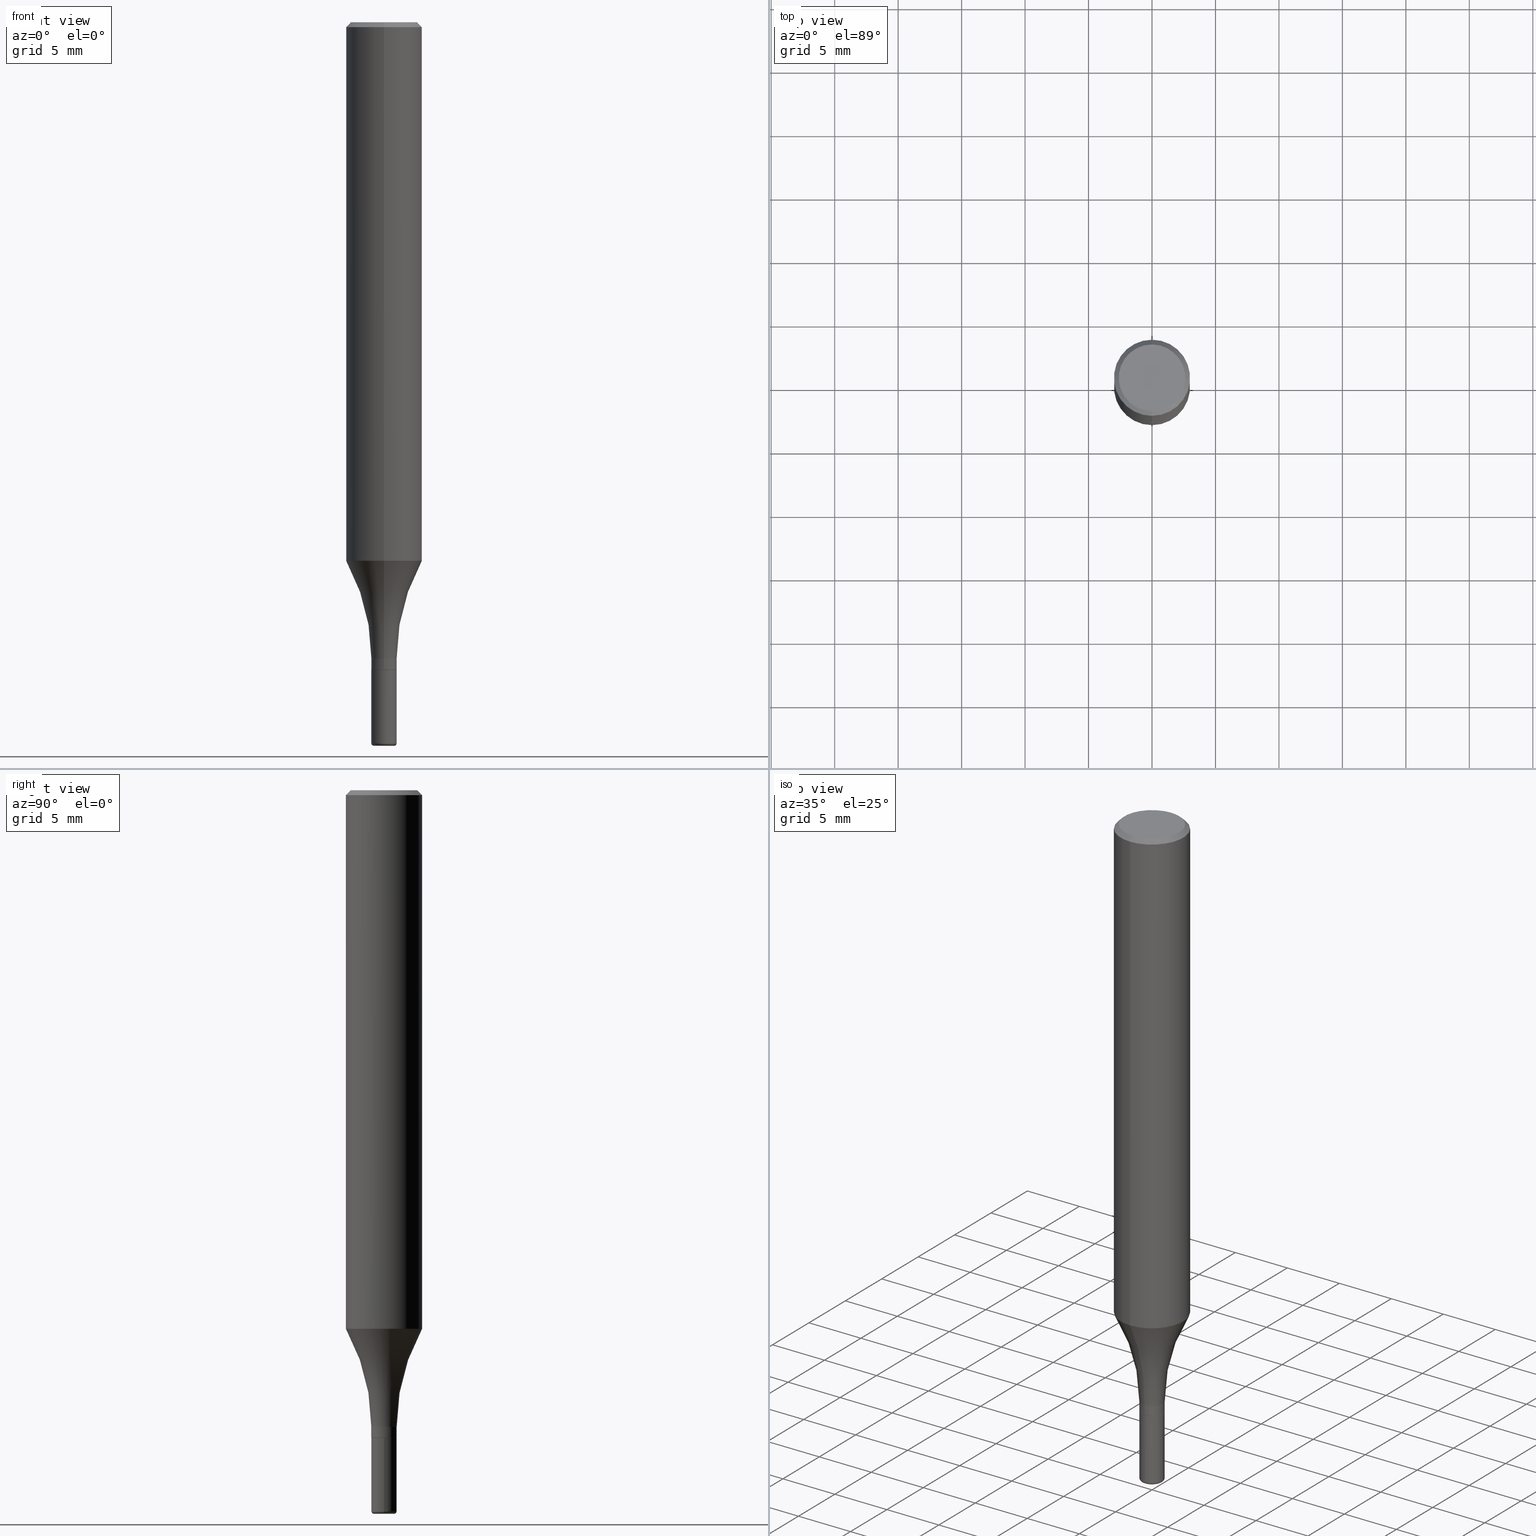
[diagram: canonical four-view strip — front | top / right | iso, engineering-drawing reading convention]
A machine part, canonical four-view strip (front | top / right | iso — engineering-drawing reading convention). The complete STEP part file that produces these views, byte-faithful:
ISO-10303-21;
HEADER;
FILE_DESCRIPTION (( 'STEP AP203' ),
    '1' );
FILE_NAME ('46850.STEP',
    '2024-02-29T19:33:15',
    ( '' ),
    ( '' ),
    'SwSTEP 2.0',
    'SolidWorks 2023',
    '' );
FILE_SCHEMA (( 'CONFIG_CONTROL_DESIGN' ));
ENDSEC;

DATA;
#1 = DIRECTION ( 'NONE',  ( 6.982962677686265922E-15, 1.000000000000000000, -3.487819265831411744E-15 ) ) ;
#2 = DIRECTION ( 'NONE',  ( -1.000000000000000000, 6.982962677686265922E-15, -4.876176775795935793E-29 ) ) ;
#3 = VECTOR ( 'NONE', #500, 39.37007874015748143 ) ;
#4 = CARTESIAN_POINT ( 'NONE',  ( -6.680938517608217067E-45, 9.541184901237628866E-31, 2.732334606503583506E-16 ) ) ;
#5 = AXIS2_PLACEMENT_3D ( 'NONE', #99, #492, #326 ) ;
#6 = CIRCLE ( 'NONE', #393, 0.03135000000000000286 ) ;
#7 = FACE_OUTER_BOUND ( 'NONE', #47, .T. ) ;
#8 = DIRECTION ( 'NONE',  ( 5.024295867785874878E-15, 0.7071067811862421504, 0.7071067811868528841 ) ) ;
#9 = TOROIDAL_SURFACE ( 'NONE', #100, 0.03135000000000000286, 0.008000000000000147618 ) ;
#10 = DIRECTION ( 'NONE',  ( 1.000000000000000000, -6.982962677686269077E-15, 0.000000000000000000 ) ) ;
#11 = ORIENTED_EDGE ( 'NONE', *, *, #39, .T. ) ;
#12 = DIRECTION ( 'NONE',  ( -2.445139223324277623E-29, 3.491953320258587093E-15, 1.000000000000000000 ) ) ;
#13 = ADVANCED_FACE ( 'NONE', ( #442 ), #278, .F. ) ;
#14 = CARTESIAN_POINT ( 'NONE',  ( 4.909595046512817107E-29, -7.011493071747216569E-15, -2.007899999999999796 ) ) ;
#15 = LINE ( 'NONE', #173, #375 ) ;
#16 = APPROVAL_PERSON_ORGANIZATION ( #193, #30, #151 ) ;
#17 = CARTESIAN_POINT ( 'NONE',  ( 3.667708834986338837E-31, -5.237929980387770643E-17, -0.01499999999999968373 ) ) ;
#18 = CARTESIAN_POINT ( 'NONE',  ( -8.246878922347480654E-16, -0.1181000000000000105, 4.123996871225391415E-16 ) ) ;
#19 = EDGE_CURVE ( 'NONE', #419, #452, #123, .T. ) ;
#20 = CARTESIAN_POINT ( 'NONE',  ( 4.827599970290078633E-29, -6.892533311010254125E-15, -1.974100000000000188 ) ) ;
#21 = FACE_OUTER_BOUND ( 'NONE', #511, .T. ) ;
#22 = AXIS2_PLACEMENT_3D ( 'NONE', #57, #358, #2 ) ;
#23 = AXIS2_PLACEMENT_3D ( 'NONE', #395, #41, #58 ) ;
#24 = PERSON_AND_ORGANIZATION_ROLE ( 'classification_officer' ) ;
#25 = EDGE_CURVE ( 'NONE', #306, #213, #230, .T. ) ;
#26 = CIRCLE ( 'NONE', #68, 0.03935000000000000303 ) ;
#27 = APPROVAL_STATUS ( 'not_yet_approved' ) ;
#28 = DATE_AND_TIME ( #382, #35 ) ;
#29 = AXIS2_PLACEMENT_3D ( 'NONE', #362, #12, #369 ) ;
#30 = APPROVAL ( #349, 'UNSPECIFIED' ) ;
#31 = DIRECTION ( 'NONE',  ( -6.982962677686265922E-15, -1.000000000000000000, 3.491953320258587093E-15 ) ) ;
#32 = DATE_TIME_ROLE ( 'classification_date' ) ;
#33 = DIRECTION ( 'NONE',  ( -2.445139223324277623E-29, 3.491953320258587093E-15, 1.000000000000000000 ) ) ;
#34 = VERTEX_POINT ( 'NONE', #485 ) ;
#35 = LOCAL_TIME ( 14, 33, 15.00000000000000000, #305 ) ;
#36 = ADVANCED_BREP_SHAPE_REPRESENTATION ( '46850', ( #417, #421, #113 ), #397 ) ;
#37 = DIRECTION ( 'NONE',  ( -1.000000000000000000, 6.982962677686265922E-15, -4.883557194083112340E-29 ) ) ;
#38 = DIRECTION ( 'NONE',  ( -6.982962677686265922E-15, -1.000000000000000000, 6.942434545525431313E-15 ) ) ;
#39 = EDGE_CURVE ( 'NONE', #48, #338, #242, .T. ) ;
#40 = DIRECTION ( 'NONE',  ( -2.445139223324277623E-29, 3.491953320258587093E-15, 1.000000000000000000 ) ) ;
#41 = DIRECTION ( 'NONE',  ( 2.445139223324277343E-29, -3.491953320258587093E-15, -1.000000000000000000 ) ) ;
#42 = ORIENTED_EDGE ( 'NONE', *, *, #152, .F. ) ;
#43 = AXIS2_PLACEMENT_3D ( 'NONE', #137, #259, #458 ) ;
#44 = PLANE ( 'NONE',  #352 ) ;
#45 = APPROVAL ( #27, 'UNSPECIFIED' ) ;
#46 = CARTESIAN_POINT ( 'NONE',  ( 0.000000000000000000, 0.000000000000000000, 0.000000000000000000 ) ) ;
#47 = EDGE_LOOP ( 'NONE', ( #400, #65, #130, #425 ) ) ;
#48 = VERTEX_POINT ( 'NONE', #359 ) ;
#49 = DIRECTION ( 'NONE',  ( -2.445139223324277623E-29, 3.491953320258587093E-15, 1.000000000000000000 ) ) ;
#50 = EDGE_LOOP ( 'NONE', ( #200, #399, #404, #345 ) ) ;
#51 = CIRCLE ( 'NONE', #118, 0.03935000000000007936 ) ;
#52 = DIRECTION ( 'NONE',  ( 1.000000000000000000, -6.982962677686269077E-15, 0.000000000000000000 ) ) ;
#53 = ORIENTED_EDGE ( 'NONE', *, *, #342, .F. ) ;
#54 = ORIENTED_EDGE ( 'NONE', *, *, #368, .T. ) ;
#55 = DIRECTION ( 'NONE',  ( -6.982962677686265922E-15, -1.000000000000000000, 3.491953320258587487E-15 ) ) ;
#56 = EDGE_CURVE ( 'NONE', #325, #112, #187, .T. ) ;
#57 = CARTESIAN_POINT ( 'NONE',  ( 2.747795813670036784E-16, 0.03934999999999299475, -2.007900000000000240 ) ) ;
#58 = DIRECTION ( 'NONE',  ( 6.982962677686265922E-15, 1.000000000000000000, -3.491953320258587093E-15 ) ) ;
#59 = AXIS2_PLACEMENT_3D ( 'NONE', #402, #134, #52 ) ;
#60 = ADVANCED_FACE ( 'NONE', ( #90 ), #44, .F. ) ;
#61 = FACE_OUTER_BOUND ( 'NONE', #191, .T. ) ;
#62 = DATE_AND_TIME ( #473, #304 ) ;
#63 = DIRECTION ( 'NONE',  ( -2.445468806185136877E-29, 3.491481338843145188E-15, 1.000000000000000000 ) ) ;
#64 = AXIS2_PLACEMENT_3D ( 'NONE', #4, #164, #319 ) ;
#65 = ORIENTED_EDGE ( 'NONE', *, *, #320, .T. ) ;
#66 = CIRCLE ( 'NONE', #486, 0.6249999999999998890 ) ;
#67 = APPROVAL_STATUS ( 'not_yet_approved' ) ;
#68 = AXIS2_PLACEMENT_3D ( 'NONE', #447, #246, #10 ) ;
#69 = CARTESIAN_POINT ( 'NONE',  ( 5.468312797510584412E-29, -7.807301421787156705E-15, -2.236099999999999977 ) ) ;
#70 = DATE_AND_TIME ( #189, #366 ) ;
#71 = CIRCLE ( 'NONE', #381, 0.03885000000000006504 ) ;
#72 = PRODUCT ( '46850', '46850', '', ( #347 ) ) ;
#73 = AXIS2_PLACEMENT_3D ( 'NONE', #219, #456, #289 ) ;
#74 = LINE ( 'NONE', #109, #273 ) ;
#75 =( NAMED_UNIT ( * ) PLANE_ANGLE_UNIT ( ) SI_UNIT ( $, .RADIAN. ) );
#76 = AXIS2_PLACEMENT_3D ( 'NONE', #17, #107, #405 ) ;
#77 = CIRCLE ( 'NONE', #438, 0.1181000000000000383 ) ;
#78 = DIRECTION ( 'NONE',  ( -6.982962677686266711E-15, -1.000000000000000000, 0.000000000000000000 ) ) ;
#79 = ORIENTED_EDGE ( 'NONE', *, *, #166, .T. ) ;
#80 = AXIS2_PLACEMENT_3D ( 'NONE', #238, #37, #356 ) ;
#81 = DIRECTION ( 'NONE',  ( -2.445139223324277623E-29, 3.491953320258587093E-15, 1.000000000000000000 ) ) ;
#82 = ORIENTED_EDGE ( 'NONE', *, *, #412, .T. ) ;
#83 = CARTESIAN_POINT ( 'NONE',  ( -0.03935000000000015569, -7.129324834503553629E-15, -2.236099999999999977 ) ) ;
#84 = AXIS2_PLACEMENT_3D ( 'NONE', #20, #176, #293 ) ;
#85 = DIRECTION ( 'NONE',  ( -2.445139223324277623E-29, 3.491953320258587093E-15, 1.000000000000000000 ) ) ;
#86 = PERSON ( 'UNSPECIFIED', 'UNSPECIFIED', 'UNSPECIFIED', ('UNSPECIFIED'), ('UNSPECIFIED'), ('UNSPECIFIED') ) ;
#87 = ORIENTED_EDGE ( 'NONE', *, *, #316, .F. ) ;
#88 = DIRECTION ( 'NONE',  ( -6.982962677686265922E-15, -1.000000000000000000, 3.491953320258586699E-15 ) ) ;
#89 = CARTESIAN_POINT ( 'NONE',  ( 3.667708834986338837E-31, -5.237929980387770643E-17, -0.01499999999999968373 ) ) ;
#90 = FACE_OUTER_BOUND ( 'NONE', #127, .T. ) ;
#91 = EDGE_CURVE ( 'NONE', #112, #234, #454, .T. ) ;
#92 = LOCAL_TIME ( 14, 33, 15.00000000000000000, #340 ) ;
#93 = ORIENTED_EDGE ( 'NONE', *, *, #406, .T. ) ;
#94 = CARTESIAN_POINT ( 'NONE',  ( 0.000000000000000000, 0.000000000000000000, 0.000000000000000000 ) ) ;
#95 = EDGE_CURVE ( 'NONE', #306, #282, #459, .T. ) ;
#96 = CARTESIAN_POINT ( 'NONE',  ( 4.084351511197792915E-29, -5.832945905321489413E-15, -1.670396299824977726 ) ) ;
#97 = ORIENTED_EDGE ( 'NONE', *, *, #166, .F. ) ;
#98 = CC_DESIGN_PERSON_AND_ORGANIZATION_ASSIGNMENT ( #462, #224, ( #171 ) ) ;
#99 = CARTESIAN_POINT ( 'NONE',  ( 5.487876547960065873E-29, -7.835233272497903917E-15, -2.244100000000000428 ) ) ;
#100 = AXIS2_PLACEMENT_3D ( 'NONE', #115, #434, #272 ) ;
#101 = DIRECTION ( 'NONE',  ( -6.982962677686265922E-15, -1.000000000000000000, 4.626330217890367758E-15 ) ) ;
#102 = VERTEX_POINT ( 'NONE', #508 ) ;
#103 = CARTESIAN_POINT ( 'NONE',  ( 4.909595046512817107E-29, -7.011493071747216569E-15, -2.007899999999999796 ) ) ;
#104 = APPROVAL_PERSON_ORGANIZATION ( #150, #45, #374 ) ;
#105 = FACE_OUTER_BOUND ( 'NONE', #496, .T. ) ;
#106 = ORIENTED_EDGE ( 'NONE', *, *, #183, .F. ) ;
#107 = DIRECTION ( 'NONE',  ( -2.445139223324277623E-29, 3.491953320258587093E-15, 1.000000000000000000 ) ) ;
#108 = COORDINATED_UNIVERSAL_TIME_OFFSET ( 5, 0, .BEHIND. ) ;
#109 = CARTESIAN_POINT ( 'NONE',  ( 2.795985665215999870E-16, 0.03935000000000008630, -1.374083631521757131E-16 ) ) ;
#110 = PERSON_AND_ORGANIZATION ( #86, #318 ) ;
#111 =( CONVERSION_BASED_UNIT ( 'INCH', #142 ) LENGTH_UNIT ( ) NAMED_UNIT ( #303 ) );
#112 = VERTEX_POINT ( 'NONE', #292 ) ;
#113 = AXIS2_PLACEMENT_3D ( 'NONE', #262, #470, #232 ) ;
#114 = EDGE_LOOP ( 'NONE', ( #387, #215, #253, #133 ) ) ;
#115 = CARTESIAN_POINT ( 'NONE',  ( 5.468312797510584412E-29, -7.807301421787156705E-15, -2.236099999999999977 ) ) ;
#116 = APPROVAL ( #67, 'UNSPECIFIED' ) ;
#117 = ORIENTED_EDGE ( 'NONE', *, *, #301, .F. ) ;
#118 = AXIS2_PLACEMENT_3D ( 'NONE', #155, #310, #478 ) ;
#119 = TOROIDAL_SURFACE ( 'NONE', #84, 0.6643500000000001071, 0.6250000000000000000 ) ;
#120 = FACE_OUTER_BOUND ( 'NONE', #236, .T. ) ;
#121 = EDGE_CURVE ( 'NONE', #398, #172, #177, .T. ) ;
#122 = DIRECTION ( 'NONE',  ( -2.445139223324277343E-29, 3.491953320258587093E-15, 1.000000000000000000 ) ) ;
#123 = LINE ( 'NONE', #161, #455 ) ;
#124 = FACE_OUTER_BOUND ( 'NONE', #329, .T. ) ;
#125 = EDGE_LOOP ( 'NONE', ( #190, #313, #392, #209 ) ) ;
#126 = VECTOR ( 'NONE', #225, 39.37007874015748143 ) ;
#127 = EDGE_LOOP ( 'NONE', ( #363, #251 ) ) ;
#128 = CARTESIAN_POINT ( 'NONE',  ( 0.000000000000000000, 0.000000000000000000, 0.000000000000000000 ) ) ;
#129 = CONICAL_SURFACE ( 'NONE', #231, 0.1180999999999999966, 0.7853981633974495002 ) ;
#130 = ORIENTED_EDGE ( 'NONE', *, *, #152, .T. ) ;
#131 = CARTESIAN_POINT ( 'NONE',  ( -2.747795813669551634E-16, -0.03935000000000008630, 1.374083631521757131E-16 ) ) ;
#132 = FACE_OUTER_BOUND ( 'NONE', #499, .T. ) ;
#133 = ORIENTED_EDGE ( 'NONE', *, *, #275, .F. ) ;
#134 = DIRECTION ( 'NONE',  ( -2.445468806185136597E-29, 3.491481338843145583E-15, 1.000000000000000000 ) ) ;
#135 = ORIENTED_EDGE ( 'NONE', *, *, #298, .T. ) ;
#136 = ADVANCED_FACE ( 'NONE', ( #124 ), #422, .T. ) ;
#137 = CARTESIAN_POINT ( 'NONE',  ( 5.468312797510584412E-29, -7.807301421787156705E-15, -2.236099999999999977 ) ) ;
#138 = CARTESIAN_POINT ( 'NONE',  ( 2.795985665216486992E-16, 0.03934999999999307108, -2.007399999999999629 ) ) ;
#139 = CARTESIAN_POINT ( 'NONE',  ( 3.667708834986338837E-31, -5.237929980387770643E-17, -0.01499999999999968373 ) ) ;
#140 = APPLICATION_CONTEXT ( 'configuration controlled 3d designs of mechanical parts and assemblies' ) ;
#141 = EDGE_CURVE ( 'NONE', #335, #419, #71, .T. ) ;
#142 = LENGTH_MEASURE_WITH_UNIT ( LENGTH_MEASURE( 0.02539999999999999897 ), #205 );
#143 = AXIS2_PLACEMENT_3D ( 'NONE', #69, #469, #235 ) ;
#144 = CALENDAR_DATE ( 2024, 29, 2 ) ;
#145 = EDGE_LOOP ( 'NONE', ( #157, #396, #216, #53 ) ) ;
#146 = CC_DESIGN_APPROVAL ( #30, ( #263 ) ) ;
#147 = CARTESIAN_POINT ( 'NONE',  ( 4.909595046512817107E-29, -7.011493071747216569E-15, -2.007899999999999796 ) ) ;
#148 = SECURITY_CLASSIFICATION_LEVEL ( 'unclassified' ) ;
#149 = DIRECTION ( 'NONE',  ( -6.982962677686265922E-15, -1.000000000000000000, 3.491953320258587487E-15 ) ) ;
#150 = PERSON_AND_ORGANIZATION ( #86, #318 ) ;
#151 = APPROVAL_ROLE ( '' ) ;
#152 = EDGE_CURVE ( 'NONE', #102, #234, #327, .T. ) ;
#153 = CARTESIAN_POINT ( 'NONE',  ( 8.246878922347483612E-16, 0.1180999999999999411, -0.01500000000000009659 ) ) ;
#154 = CLOSED_SHELL ( 'NONE', ( #343, #463, #136, #311, #444, #489, #439, #476, #248, #357, #380, #487 ) ) ;
#155 = CARTESIAN_POINT ( 'NONE',  ( 4.908372476901153574E-29, -7.009747095087085997E-15, -2.007399999999999629 ) ) ;
#156 = CARTESIAN_POINT ( 'NONE',  ( 0.03935000000000015569, -8.082081003154113199E-15, -2.236099999999999977 ) ) ;
#157 = ORIENTED_EDGE ( 'NONE', *, *, #287, .T. ) ;
#158 = CIRCLE ( 'NONE', #163, 0.1181000000000000383 ) ;
#159 = EDGE_CURVE ( 'NONE', #102, #48, #77, .T. ) ;
#160 = EDGE_CURVE ( 'NONE', #325, #338, #427, .T. ) ;
#161 = CARTESIAN_POINT ( 'NONE',  ( 2.760458528428484416E-16, 0.03884999999999305675, -2.007899999999999796 ) ) ;
#162 = EDGE_CURVE ( 'NONE', #34, #388, #6, .T. ) ;
#163 = AXIS2_PLACEMENT_3D ( 'NONE', #96, #279, #101 ) ;
#164 = DIRECTION ( 'NONE',  ( -2.445139223324277623E-29, 3.491953320258587093E-15, 1.000000000000000000 ) ) ;
#165 = CARTESIAN_POINT ( 'NONE',  ( 0.03135000000000000286, -8.054149152443367565E-15, -2.244100000000000428 ) ) ;
#166 = EDGE_CURVE ( 'NONE', #172, #372, #468, .T. ) ;
#167 = DIRECTION ( 'NONE',  ( 1.000000000000000000, -6.982962677686267499E-15, 0.000000000000000000 ) ) ;
#168 = ORIENTED_EDGE ( 'NONE', *, *, #287, .F. ) ;
#169 = DIRECTION ( 'NONE',  ( -2.445139223324277623E-29, 3.491953320258587093E-15, 1.000000000000000000 ) ) ;
#170 = DIRECTION ( 'NONE',  ( -6.982962677686266711E-15, -1.000000000000000000, 0.000000000000000000 ) ) ;
#171 = PRODUCT_DEFINITION_FORMATION_WITH_SPECIFIED_SOURCE ( 'ANY', '', #72, .NOT_KNOWN. ) ;
#172 = VERTEX_POINT ( 'NONE', #390 ) ;
#173 = CARTESIAN_POINT ( 'NONE',  ( 0.03935000000000007936, -2.747795813669551634E-16, 1.918775561275704577E-30 ) ) ;
#174 = ORIENTED_EDGE ( 'NONE', *, *, #25, .F. ) ;
#175 = CARTESIAN_POINT ( 'NONE',  ( -2.747795813669060075E-16, -0.03935000000000708764, -2.007399999999999185 ) ) ;
#176 = DIRECTION ( 'NONE',  ( -2.445139223324277623E-29, 3.491953320258587093E-15, 1.000000000000000000 ) ) ;
#177 = LINE ( 'NONE', #131, #3 ) ;
#178 = EDGE_LOOP ( 'NONE', ( #491, #281, #227, #79 ) ) ;
#179 = DIRECTION ( 'NONE',  ( -6.982962677686265922E-15, -1.000000000000000000, 3.491953320258587487E-15 ) ) ;
#180 = CIRCLE ( 'NONE', #203, 0.1031000000000000111 ) ;
#181 = APPROVAL_DATE_TIME ( #62, #30 ) ;
#182 = CALENDAR_DATE ( 2024, 29, 2 ) ;
#183 = EDGE_CURVE ( 'NONE', #419, #335, #321, .T. ) ;
#184 = PRODUCT_RELATED_PRODUCT_CATEGORY ( 'detail', '', ( #72 ) ) ;
#185 = CYLINDRICAL_SURFACE ( 'NONE', #315, 0.03935000000000008630 ) ;
#186 = COORDINATED_UNIVERSAL_TIME_OFFSET ( 5, 0, .BEHIND. ) ;
#187 = CIRCLE ( 'NONE', #64, 0.1031000000000000111 ) ;
#188 = CIRCLE ( 'NONE', #73, 0.008000000000000152822 ) ;
#189 = CALENDAR_DATE ( 2024, 29, 2 ) ;
#190 = ORIENTED_EDGE ( 'NONE', *, *, #257, .F. ) ;
#191 = EDGE_LOOP ( 'NONE', ( #222, #517, #502, #378 ) ) ;
#192 = CARTESIAN_POINT ( 'NONE',  ( 3.667708834986338837E-31, -5.237929980387770643E-17, -0.01499999999999968373 ) ) ;
#193 = PERSON_AND_ORGANIZATION ( #86, #318 ) ;
#194 = ORIENTED_EDGE ( 'NONE', *, *, #368, .F. ) ;
#195 = ORIENTED_EDGE ( 'NONE', *, *, #257, .T. ) ;
#196 = LINE ( 'NONE', #228, #403 ) ;
#197 = CARTESIAN_POINT ( 'NONE',  ( 4.909595046512817107E-29, -7.011493071747216569E-15, -2.007899999999999796 ) ) ;
#198 = ADVANCED_FACE ( 'NONE', ( #354 ), #9, .T. ) ;
#199 = DIRECTION ( 'NONE',  ( -2.445468806185136597E-29, 3.491481338843145583E-15, 1.000000000000000000 ) ) ;
#200 = ORIENTED_EDGE ( 'NONE', *, *, #91, .F. ) ;
#201 = AXIS2_PLACEMENT_3D ( 'NONE', #493, #212, #364 ) ;
#202 = SHAPE_DEFINITION_REPRESENTATION ( #385, #36 ) ;
#203 = AXIS2_PLACEMENT_3D ( 'NONE', #446, #249, #55 ) ;
#204 = EDGE_CURVE ( 'NONE', #102, #172, #300, .T. ) ;
#205 =( LENGTH_UNIT ( ) NAMED_UNIT ( * ) SI_UNIT ( $, .METRE. ) );
#206 = ORIENTED_EDGE ( 'NONE', *, *, #332, .T. ) ;
#207 = PLANE ( 'NONE',  #237 ) ;
#208 = UNCERTAINTY_MEASURE_WITH_UNIT (LENGTH_MEASURE( 1.000000000000000082E-05 ), #111, 'distance_accuracy_value', 'NONE');
#209 = ORIENTED_EDGE ( 'NONE', *, *, #226, .F. ) ;
#210 = CIRCLE ( 'NONE', #361, 0.03935000000000007936 ) ;
#211 = DIRECTION ( 'NONE',  ( -6.982962677686266711E-15, -1.000000000000000000, 0.000000000000000000 ) ) ;
#212 = DIRECTION ( 'NONE',  ( -2.445139223324277623E-29, 3.491953320258587093E-15, 1.000000000000000000 ) ) ;
#213 = VERTEX_POINT ( 'NONE', #156 ) ;
#214 = CARTESIAN_POINT ( 'NONE',  ( -2.712881000280628032E-16, -0.03885000000000708026, -2.007899999999999796 ) ) ;
#215 = ORIENTED_EDGE ( 'NONE', *, *, #183, .T. ) ;
#216 = ORIENTED_EDGE ( 'NONE', *, *, #332, .F. ) ;
#217 = CARTESIAN_POINT ( 'NONE',  ( 2.778222096822491867E-16, 0.03884999999999305675, -2.007899999999999796 ) ) ;
#218 = CC_DESIGN_SECURITY_CLASSIFICATION ( #263, ( #171 ) ) ;
#219 = CARTESIAN_POINT ( 'NONE',  ( 0.03135000000000000286, -8.026217301732621930E-15, -2.236099999999999977 ) ) ;
#220 = FACE_OUTER_BOUND ( 'NONE', #50, .T. ) ;
#221 = CARTESIAN_POINT ( 'NONE',  ( 0.03935000000000000303, -7.285324961630105839E-15, -2.007899999999999796 ) ) ;
#222 = ORIENTED_EDGE ( 'NONE', *, *, #320, .F. ) ;
#223 = DIRECTION ( 'NONE',  ( -2.445468806185136597E-29, 3.491481338843145583E-15, 1.000000000000000000 ) ) ;
#224 = PERSON_AND_ORGANIZATION_ROLE ( 'creator' ) ;
#225 = DIRECTION ( 'NONE',  ( -4.851104656540969797E-15, -0.7071067811865507924, -0.7071067811865442421 ) ) ;
#226 = EDGE_CURVE ( 'NONE', #372, #172, #461, .T. ) ;
#227 = ORIENTED_EDGE ( 'NONE', *, *, #204, .T. ) ;
#228 = CARTESIAN_POINT ( 'NONE',  ( -2.712881000280628032E-16, -0.03885000000000708026, -2.007899999999999796 ) ) ;
#229 = PERSON_AND_ORGANIZATION_ROLE ( 'design_supplier' ) ;
#230 = CIRCLE ( 'NONE', #407, 0.03935000000000015569 ) ;
#231 = AXIS2_PLACEMENT_3D ( 'NONE', #89, #441, #1 ) ;
#232 = DIRECTION ( 'NONE',  ( 1.000000000000000000, 0.000000000000000000, 0.000000000000000000 ) ) ;
#233 = CC_DESIGN_PERSON_AND_ORGANIZATION_ASSIGNMENT ( #516, #384, ( #72 ) ) ;
#234 = VERTEX_POINT ( 'NONE', #277 ) ;
#235 = DIRECTION ( 'NONE',  ( 1.000000000000000000, -6.982962677686267499E-15, 0.000000000000000000 ) ) ;
#236 = EDGE_LOOP ( 'NONE', ( #348, #106 ) ) ;
#237 = AXIS2_PLACEMENT_3D ( 'NONE', #147, #428, #31 ) ;
#238 = CARTESIAN_POINT ( 'NONE',  ( -4.639131254920823490E-15, -0.6643500000000069905, -1.974099999999997967 ) ) ;
#239 = CIRCLE ( 'NONE', #5, 0.03135000000000000286 ) ;
#240 = FACE_OUTER_BOUND ( 'NONE', #448, .T. ) ;
#241 = ORIENTED_EDGE ( 'NONE', *, *, #265, .T. ) ;
#242 = LINE ( 'NONE', #494, #518 ) ;
#243 = PLANE ( 'NONE',  #23 ) ;
#244 = ORIENTED_EDGE ( 'NONE', *, *, #19, .T. ) ;
#245 = ORIENTED_EDGE ( 'NONE', *, *, #298, .F. ) ;
#246 = DIRECTION ( 'NONE',  ( -2.445468806185136597E-29, 3.491481338843145583E-15, 1.000000000000000000 ) ) ;
#247 = LOCAL_TIME ( 14, 33, 15.00000000000000000, #108 ) ;
#248 = ADVANCED_FACE ( 'NONE', ( #120 ), #207, .F. ) ;
#249 = DIRECTION ( 'NONE',  ( -2.445139223324277623E-29, 3.491953320258587093E-15, 1.000000000000000000 ) ) ;
#250 = CARTESIAN_POINT ( 'NONE',  ( 7.723156721521011834E-16, 0.1031000000000000111, -8.678692666830198749E-17 ) ) ;
#251 = ORIENTED_EDGE ( 'NONE', *, *, #162, .F. ) ;
#252 = CIRCLE ( 'NONE', #509, 0.008000000000000152822 ) ;
#253 = ORIENTED_EDGE ( 'NONE', *, *, #301, .T. ) ;
#254 = FACE_OUTER_BOUND ( 'NONE', #290, .T. ) ;
#255 = CYLINDRICAL_SURFACE ( 'NONE', #29, 0.1181000000000000105 ) ;
#256 = AXIS2_PLACEMENT_3D ( 'NONE', #401, #169, #501 ) ;
#257 = EDGE_CURVE ( 'NONE', #452, #372, #74, .T. ) ;
#258 = APPLICATION_CONTEXT ( 'configuration controlled 3d designs of mechanical parts and assemblies' ) ;
#259 = DIRECTION ( 'NONE',  ( -2.445468806185136597E-29, 3.491481338843145583E-15, 1.000000000000000000 ) ) ;
#260 = FACE_OUTER_BOUND ( 'NONE', #178, .T. ) ;
#261 = CARTESIAN_POINT ( 'NONE',  ( -8.102248135368174406E-16, -0.1181000000000000522, -0.01499999999999927260 ) ) ;
#262 = CARTESIAN_POINT ( 'NONE',  ( 0.000000000000000000, 0.000000000000000000, 0.000000000000000000 ) ) ;
#263 = SECURITY_CLASSIFICATION ( '', '', #148 ) ;
#264 = APPLICATION_PROTOCOL_DEFINITION ( 'international standard', 'config_control_design', 1994, #258 ) ;
#265 = EDGE_CURVE ( 'NONE', #234, #338, #386, .T. ) ;
#266 = DIRECTION ( 'NONE',  ( -2.445139223324277343E-29, 3.491953320258587093E-15, 1.000000000000000000 ) ) ;
#267 = DATE_TIME_ROLE ( 'creation_date' ) ;
#268 = CARTESIAN_POINT ( 'NONE',  ( 5.487876547960065873E-29, -7.835233272497903917E-15, -2.244100000000000428 ) ) ;
#269 = CC_DESIGN_DATE_AND_TIME_ASSIGNMENT ( #28, #32, ( #263 ) ) ;
#270 = DIRECTION ( 'NONE',  ( -6.982962677686264344E-15, -1.000000000000000000, 6.942434545525432890E-15 ) ) ;
#271 = EDGE_CURVE ( 'NONE', #34, #306, #252, .T. ) ;
#272 = DIRECTION ( 'NONE',  ( 1.000000000000000000, -6.982962677686266711E-15, 4.883557194083112901E-29 ) ) ;
#273 = VECTOR ( 'NONE', #266, 39.37007874015748143 ) ;
#274 = ORIENTED_EDGE ( 'NONE', *, *, #159, .T. ) ;
#275 = EDGE_CURVE ( 'NONE', #452, #398, #210, .T. ) ;
#276 = DIRECTION ( 'NONE',  ( -1.000000000000000000, 7.105427357601008170E-15, 0.000000000000000000 ) ) ;
#277 = CARTESIAN_POINT ( 'NONE',  ( -8.102248135368174406E-16, -0.1181000000000000522, -0.01499999999999927260 ) ) ;
#278 = PLANE ( 'NONE',  #22 ) ;
#279 = DIRECTION ( 'NONE',  ( -2.445139223324277623E-29, 3.491953320258587093E-15, 1.000000000000000000 ) ) ;
#280 = CARTESIAN_POINT ( 'NONE',  ( 4.084351511197792915E-29, -5.832945905321489413E-15, -1.670396299824977726 ) ) ;
#281 = ORIENTED_EDGE ( 'NONE', *, *, #159, .F. ) ;
#282 = VERTEX_POINT ( 'NONE', #426 ) ;
#283 = AXIS2_PLACEMENT_3D ( 'NONE', #288, #451, #88 ) ;
#284 = DIRECTION ( 'NONE',  ( -2.445468806185136597E-29, 3.491481338843145583E-15, 1.000000000000000000 ) ) ;
#285 = EDGE_LOOP ( 'NONE', ( #274, #11, #331, #42 ) ) ;
#286 = DIRECTION ( 'NONE',  ( -2.445139223324277623E-29, 3.491953320258587093E-15, 1.000000000000000000 ) ) ;
#287 = EDGE_CURVE ( 'NONE', #213, #306, #429, .T. ) ;
#288 = CARTESIAN_POINT ( 'NONE',  ( 0.000000000000000000, 0.000000000000000000, 0.000000000000000000 ) ) ;
#289 = DIRECTION ( 'NONE',  ( 1.000000000000000000, -6.982962677686320353E-15, 0.000000000000000000 ) ) ;
#290 = EDGE_LOOP ( 'NONE', ( #409, #82 ) ) ;
#291 = DIRECTION ( 'NONE',  ( 6.982962677686265922E-15, 1.000000000000000000, -3.487819265831411744E-15 ) ) ;
#292 = CARTESIAN_POINT ( 'NONE',  ( -7.587710785535310407E-16, -0.1031000000000000111, 6.332538479690188119E-16 ) ) ;
#293 = DIRECTION ( 'NONE',  ( -6.982962677686265133E-15, -1.000000000000000000, 3.491953320258587093E-15 ) ) ;
#294 = TOROIDAL_SURFACE ( 'NONE', #43, 0.03135000000000000286, 0.008000000000000147618 ) ;
#295 = CARTESIAN_POINT ( 'NONE',  ( 5.551509471537904462E-29, -7.744107304173347944E-15, -2.244100000000000428 ) ) ;
#296 = DESIGN_CONTEXT ( 'detailed design', #258, 'design' ) ;
#297 = DIRECTION ( 'NONE',  ( 7.105427357601003436E-15, 1.000000000000000000, 0.000000000000000000 ) ) ;
#298 = EDGE_CURVE ( 'NONE', #398, #452, #51, .T. ) ;
#299 =( NAMED_UNIT ( * ) SI_UNIT ( $, .STERADIAN. ) SOLID_ANGLE_UNIT ( ) );
#300 = CIRCLE ( 'NONE', #80, 0.6249999999999998890 ) ;
#301 = EDGE_CURVE ( 'NONE', #335, #398, #196, .T. ) ;
#302 = DATE_AND_TIME ( #144, #92 ) ;
#303 = DIMENSIONAL_EXPONENTS ( 1.000000000000000000, 0.000000000000000000, 0.000000000000000000, 0.000000000000000000, 0.000000000000000000, 0.000000000000000000, 0.000000000000000000 ) ;
#304 = LOCAL_TIME ( 14, 33, 15.00000000000000000, #308 ) ;
#305 = COORDINATED_UNIVERSAL_TIME_OFFSET ( 5, 0, .BEHIND. ) ;
#306 = VERTEX_POINT ( 'NONE', #83 ) ;
#307 = CARTESIAN_POINT ( 'NONE',  ( 4.908372476901153574E-29, -7.009747095087085997E-15, -2.007399999999999629 ) ) ;
#308 = COORDINATED_UNIVERSAL_TIME_OFFSET ( 5, 0, .BEHIND. ) ;
#309 = DIRECTION ( 'NONE',  ( 4.937700262164553564E-15, 0.7071067811865459074, -0.7071067811865491270 ) ) ;
#310 = DIRECTION ( 'NONE',  ( -2.445139223324277623E-29, 3.491953320258587093E-15, 1.000000000000000000 ) ) ;
#311 = ADVANCED_FACE ( 'NONE', ( #240 ), #185, .T. ) ;
#312 = CC_DESIGN_PERSON_AND_ORGANIZATION_ASSIGNMENT ( #337, #229, ( #171 ) ) ;
#313 = ORIENTED_EDGE ( 'NONE', *, *, #275, .T. ) ;
#314 = CARTESIAN_POINT ( 'NONE',  ( 4.826949340764456614E-29, -6.893465049522477722E-15, -1.974100000000000188 ) ) ;
#315 = AXIS2_PLACEMENT_3D ( 'NONE', #346, #514, #149 ) ;
#316 = EDGE_CURVE ( 'NONE', #282, #479, #26, .T. ) ;
#317 = DIRECTION ( 'NONE',  ( -2.445468806185136597E-29, 3.491481338843145583E-15, 1.000000000000000000 ) ) ;
#318 = ORGANIZATION ( 'UNSPECIFIED', 'UNSPECIFIED', '' ) ;
#319 = DIRECTION ( 'NONE',  ( -6.982962677686265922E-15, -1.000000000000000000, 3.491953320258587487E-15 ) ) ;
#320 = EDGE_CURVE ( 'NONE', #48, #102, #158, .T. ) ;
#321 = CIRCLE ( 'NONE', #480, 0.03885000000000006504 ) ;
#322 = AXIS2_PLACEMENT_3D ( 'NONE', #481, #488, #424 ) ;
#323 = ORIENTED_EDGE ( 'NONE', *, *, #412, .F. ) ;
#324 = CYLINDRICAL_SURFACE ( 'NONE', #344, 0.03935000000000007936 ) ;
#325 = VERTEX_POINT ( 'NONE', #250 ) ;
#326 = DIRECTION ( 'NONE',  ( 1.000000000000000000, -6.982962677686253300E-15, 0.000000000000000000 ) ) ;
#327 = LINE ( 'NONE', #18, #464 ) ;
#328 = DIRECTION ( 'NONE',  ( -2.445468806185136877E-29, 3.491481338843145188E-15, 1.000000000000000000 ) ) ;
#329 = EDGE_LOOP ( 'NONE', ( #520, #244, #245, #117 ) ) ;
#330 = DIRECTION ( 'NONE',  ( 1.000000000000000000, -6.982962677686266711E-15, 4.876176775795935793E-29 ) ) ;
#331 = ORIENTED_EDGE ( 'NONE', *, *, #265, .F. ) ;
#332 = EDGE_CURVE ( 'NONE', #479, #282, #457, .T. ) ;
#333 = DIRECTION ( 'NONE',  ( 1.000000000000000000, -6.982962677686266711E-15, 4.876176775795935793E-29 ) ) ;
#334 = CARTESIAN_POINT ( 'NONE',  ( -0.03935000000000007936, 2.795985665215999870E-16, -1.935600958015309145E-30 ) ) ;
#335 = VERTEX_POINT ( 'NONE', #214 ) ;
#336 = FACE_OUTER_BOUND ( 'NONE', #145, .T. ) ;
#337 = PERSON_AND_ORGANIZATION ( #86, #318 ) ;
#338 = VERTEX_POINT ( 'NONE', #365 ) ;
#339 = VECTOR ( 'NONE', #309, 39.37007874015748143 ) ;
#340 = COORDINATED_UNIVERSAL_TIME_OFFSET ( 5, 0, .BEHIND. ) ;
#341 = AXIS2_PLACEMENT_3D ( 'NONE', #192, #81, #351 ) ;
#342 = EDGE_CURVE ( 'NONE', #213, #479, #15, .T. ) ;
#343 = ADVANCED_FACE ( 'NONE', ( #437 ), #498, .T. ) ;
#344 = AXIS2_PLACEMENT_3D ( 'NONE', #128, #284, #330 ) ;
#345 = ORIENTED_EDGE ( 'NONE', *, *, #482, .T. ) ;
#346 = CARTESIAN_POINT ( 'NONE',  ( 0.000000000000000000, 0.000000000000000000, 0.000000000000000000 ) ) ;
#347 = MECHANICAL_CONTEXT ( 'NONE', #140, 'mechanical' ) ;
#348 = ORIENTED_EDGE ( 'NONE', *, *, #141, .F. ) ;
#349 = APPROVAL_STATUS ( 'not_yet_approved' ) ;
#350 = ORIENTED_EDGE ( 'NONE', *, *, #316, .T. ) ;
#351 = DIRECTION ( 'NONE',  ( -6.982962677686265922E-15, -1.000000000000000000, 3.487819265831411744E-15 ) ) ;
#352 = AXIS2_PLACEMENT_3D ( 'NONE', #295, #370, #377 ) ;
#353 = CLOSED_SHELL ( 'NONE', ( #449, #512, #13, #394, #198, #60 ) ) ;
#354 = FACE_OUTER_BOUND ( 'NONE', #490, .T. ) ;
#355 = AXIS2_PLACEMENT_3D ( 'NONE', #46, #223, #333 ) ;
#356 = DIRECTION ( 'NONE',  ( -6.982962677686266711E-15, -1.000000000000000000, 0.000000000000000000 ) ) ;
#357 = ADVANCED_FACE ( 'NONE', ( #254 ), #243, .F. ) ;
#358 = DIRECTION ( 'NONE',  ( 2.438088387897960049E-29, -3.491481338843145188E-15, -1.000000000000000000 ) ) ;
#359 = CARTESIAN_POINT ( 'NONE',  ( 8.391509709327193165E-16, 0.1180999999999942096, -1.670396299824978170 ) ) ;
#360 = AXIS2_PLACEMENT_3D ( 'NONE', #139, #410, #291 ) ;
#361 = AXIS2_PLACEMENT_3D ( 'NONE', #307, #472, #270 ) ;
#362 = CARTESIAN_POINT ( 'NONE',  ( 0.000000000000000000, 0.000000000000000000, 0.000000000000000000 ) ) ;
#363 = ORIENTED_EDGE ( 'NONE', *, *, #406, .F. ) ;
#364 = DIRECTION ( 'NONE',  ( -6.982962677686266711E-15, -1.000000000000000000, 0.000000000000000000 ) ) ;
#365 = CARTESIAN_POINT ( 'NONE',  ( 8.246878922347483612E-16, 0.1180999999999999411, -0.01500000000000009659 ) ) ;
#366 = LOCAL_TIME ( 14, 33, 15.00000000000000000, #186 ) ;
#367 = FACE_OUTER_BOUND ( 'NONE', #125, .T. ) ;
#368 = EDGE_CURVE ( 'NONE', #388, #213, #188, .T. ) ;
#369 = DIRECTION ( 'NONE',  ( -6.982962677686265922E-15, -1.000000000000000000, 3.491953320258586699E-15 ) ) ;
#370 = DIRECTION ( 'NONE',  ( -2.438088387897960049E-29, 3.491481338843145188E-15, 1.000000000000000000 ) ) ;
#371 = ORIENTED_EDGE ( 'NONE', *, *, #162, .T. ) ;
#372 = VERTEX_POINT ( 'NONE', #408 ) ;
#373 = CC_DESIGN_PERSON_AND_ORGANIZATION_ASSIGNMENT ( #415, #510, ( #483 ) ) ;
#374 = APPROVAL_ROLE ( '' ) ;
#375 = VECTOR ( 'NONE', #328, 39.37007874015748143 ) ;
#376 = PERSON_AND_ORGANIZATION ( #86, #318 ) ;
#377 = DIRECTION ( 'NONE',  ( 1.000000000000000000, -6.982962677686265922E-15, 4.876176775795935793E-29 ) ) ;
#378 = ORIENTED_EDGE ( 'NONE', *, *, #204, .F. ) ;
#379 = AXIS2_PLACEMENT_3D ( 'NONE', #314, #85, #38 ) ;
#380 = ADVANCED_FACE ( 'NONE', ( #220 ), #129, .T. ) ;
#381 = AXIS2_PLACEMENT_3D ( 'NONE', #14, #286, #170 ) ;
#382 = CALENDAR_DATE ( 2024, 29, 2 ) ;
#383 = ORIENTED_EDGE ( 'NONE', *, *, #91, .T. ) ;
#384 = PERSON_AND_ORGANIZATION_ROLE ( 'design_owner' ) ;
#385 = PRODUCT_DEFINITION_SHAPE ( 'NONE', 'NONE',  #483 ) ;
#386 = CIRCLE ( 'NONE', #341, 0.1180999999999999966 ) ;
#387 = ORIENTED_EDGE ( 'NONE', *, *, #19, .F. ) ;
#388 = VERTEX_POINT ( 'NONE', #165 ) ;
#389 = CARTESIAN_POINT ( 'NONE',  ( -0.03135000000000000286, -7.584546274126365375E-15, -2.236099999999999977 ) ) ;
#390 = CARTESIAN_POINT ( 'NONE',  ( -2.747795813669068457E-16, -0.03935000000000697662, -1.974099999999999744 ) ) ;
#391 = CC_DESIGN_APPROVAL ( #45, ( #483 ) ) ;
#392 = ORIENTED_EDGE ( 'NONE', *, *, #121, .T. ) ;
#393 = AXIS2_PLACEMENT_3D ( 'NONE', #268, #199, #430 ) ;
#394 = ADVANCED_FACE ( 'NONE', ( #21 ), #324, .T. ) ;
#395 = CARTESIAN_POINT ( 'NONE',  ( 7.199434520694541042E-16, 0.1031000000000000111, -2.234036569934811628E-16 ) ) ;
#396 = ORIENTED_EDGE ( 'NONE', *, *, #95, .T. ) ;
#397 =( GEOMETRIC_REPRESENTATION_CONTEXT ( 3 ) GLOBAL_UNCERTAINTY_ASSIGNED_CONTEXT ( ( #208 ) ) GLOBAL_UNIT_ASSIGNED_CONTEXT ( ( #111, #75, #299 ) ) REPRESENTATION_CONTEXT ( 'NONE', 'WORKASPACE' ) );
#398 = VERTEX_POINT ( 'NONE', #175 ) ;
#399 = ORIENTED_EDGE ( 'NONE', *, *, #56, .F. ) ;
#400 = ORIENTED_EDGE ( 'NONE', *, *, #39, .F. ) ;
#401 = CARTESIAN_POINT ( 'NONE',  ( 4.827599970290078633E-29, -6.892533311010254125E-15, -1.974100000000000188 ) ) ;
#402 = CARTESIAN_POINT ( 'NONE',  ( 4.910256815939135870E-29, -7.010545380263151710E-15, -2.007899999999999796 ) ) ;
#403 = VECTOR ( 'NONE', #433, 39.37007874015748143 ) ;
#404 = ORIENTED_EDGE ( 'NONE', *, *, #160, .T. ) ;
#405 = DIRECTION ( 'NONE',  ( -6.982962677686265922E-15, -1.000000000000000000, 3.487819265831411744E-15 ) ) ;
#406 = EDGE_CURVE ( 'NONE', #388, #34, #239, .T. ) ;
#407 = AXIS2_PLACEMENT_3D ( 'NONE', #436, #317, #167 ) ;
#408 = CARTESIAN_POINT ( 'NONE',  ( 5.593747687271835641E-16, 0.03934999999999319598, -1.974100000000000410 ) ) ;
#409 = ORIENTED_EDGE ( 'NONE', *, *, #56, .T. ) ;
#410 = DIRECTION ( 'NONE',  ( 2.445139223324277623E-29, -3.491953320258587093E-15, -1.000000000000000000 ) ) ;
#411 = CYLINDRICAL_SURFACE ( 'NONE', #519, 0.03935000000000008630 ) ;
#412 = EDGE_CURVE ( 'NONE', #112, #325, #180, .T. ) ;
#413 = VECTOR ( 'NONE', #63, 39.37007874015748143 ) ;
#414 = ORIENTED_EDGE ( 'NONE', *, *, #271, .F. ) ;
#415 = PERSON_AND_ORGANIZATION ( #86, #318 ) ;
#416 = CONICAL_SURFACE ( 'NONE', #360, 0.1180999999999999966, 0.7853981633974495002 ) ;
#417 = MANIFOLD_SOLID_BREP ( 'Body-Move/Copy2[1]', #353 ) ;
#418 = CC_DESIGN_PERSON_AND_ORGANIZATION_ASSIGNMENT ( #110, #24, ( #263 ) ) ;
#419 = VERTEX_POINT ( 'NONE', #217 ) ;
#420 = DIRECTION ( 'NONE',  ( 7.105427357601001859E-15, 1.000000000000000000, -3.491481338843145583E-15 ) ) ;
#421 = MANIFOLD_SOLID_BREP ( 'Body-Move/Copy2[2]', #154 ) ;
#422 = CONICAL_SURFACE ( 'NONE', #201, 0.03885000000000006504, 0.7853981633970129606 ) ;
#423 = APPROVAL_DATE_TIME ( #302, #116 ) ;
#424 = DIRECTION ( 'NONE',  ( -6.982962677686265922E-15, -1.000000000000000000, 6.942434545525431313E-15 ) ) ;
#425 = ORIENTED_EDGE ( 'NONE', *, *, #482, .F. ) ;
#426 = CARTESIAN_POINT ( 'NONE',  ( -0.03935000000000000303, -7.129324834503555207E-15, -2.007899999999999796 ) ) ;
#427 = LINE ( 'NONE', #153, #339 ) ;
#428 = DIRECTION ( 'NONE',  ( -2.445139223324277343E-29, 3.491953320258587093E-15, 1.000000000000000000 ) ) ;
#429 = CIRCLE ( 'NONE', #143, 0.03935000000000015569 ) ;
#430 = DIRECTION ( 'NONE',  ( 1.000000000000000000, -6.982962677686253300E-15, 0.000000000000000000 ) ) ;
#431 = EDGE_CURVE ( 'NONE', #48, #372, #66, .T. ) ;
#432 = EDGE_LOOP ( 'NONE', ( #206, #350 ) ) ;
#433 = DIRECTION ( 'NONE',  ( -4.937700262162398396E-15, -0.7071067811862372654, 0.7071067811868577691 ) ) ;
#434 = DIRECTION ( 'NONE',  ( -2.445468806185136597E-29, 3.491481338843145583E-15, 1.000000000000000000 ) ) ;
#435 = AXIS2_PLACEMENT_3D ( 'NONE', #103, #49, #211 ) ;
#436 = CARTESIAN_POINT ( 'NONE',  ( 5.468312797510584412E-29, -7.807301421787156705E-15, -2.236099999999999977 ) ) ;
#437 = FACE_OUTER_BOUND ( 'NONE', #285, .T. ) ;
#438 = AXIS2_PLACEMENT_3D ( 'NONE', #280, #40, #484 ) ;
#439 = ADVANCED_FACE ( 'NONE', ( #367 ), #411, .T. ) ;
#440 = DIRECTION ( 'NONE',  ( -2.445139223324277343E-29, 3.491953320258587093E-15, 1.000000000000000000 ) ) ;
#441 = DIRECTION ( 'NONE',  ( 2.445139223324277623E-29, -3.491953320258587093E-15, -1.000000000000000000 ) ) ;
#442 = FACE_OUTER_BOUND ( 'NONE', #432, .T. ) ;
#443 = CIRCLE ( 'NONE', #76, 0.1180999999999999966 ) ;
#444 = ADVANCED_FACE ( 'NONE', ( #61 ), #505, .F. ) ;
#445 = ORIENTED_EDGE ( 'NONE', *, *, #271, .T. ) ;
#446 = CARTESIAN_POINT ( 'NONE',  ( -6.680938517608217067E-45, 9.541184901237628866E-31, 2.732334606503583506E-16 ) ) ;
#447 = CARTESIAN_POINT ( 'NONE',  ( 4.910256815939135870E-29, -7.010545380263151710E-15, -2.007899999999999796 ) ) ;
#448 = EDGE_LOOP ( 'NONE', ( #135, #195, #97, #504 ) ) ;
#449 = ADVANCED_FACE ( 'NONE', ( #132 ), #294, .T. ) ;
#450 = CYLINDRICAL_SURFACE ( 'NONE', #355, 0.03935000000000007936 ) ;
#451 = DIRECTION ( 'NONE',  ( -2.445139223324277623E-29, 3.491953320258587093E-15, 1.000000000000000000 ) ) ;
#452 = VERTEX_POINT ( 'NONE', #138 ) ;
#453 = FACE_OUTER_BOUND ( 'NONE', #114, .T. ) ;
#454 = LINE ( 'NONE', #261, #126 ) ;
#455 = VECTOR ( 'NONE', #8, 39.37007874015748143 ) ;
#456 = DIRECTION ( 'NONE',  ( -6.982962677686266711E-15, -1.000000000000000000, 3.491481338843145583E-15 ) ) ;
#457 = CIRCLE ( 'NONE', #59, 0.03935000000000000303 ) ;
#458 = DIRECTION ( 'NONE',  ( 1.000000000000000000, -6.982962677686266711E-15, 4.883557194083112901E-29 ) ) ;
#459 = LINE ( 'NONE', #334, #413 ) ;
#460 = DIRECTION ( 'NONE',  ( -2.445139223324277623E-29, 3.491953320258587093E-15, 1.000000000000000000 ) ) ;
#461 = CIRCLE ( 'NONE', #379, 0.03935000000000008630 ) ;
#462 = PERSON_AND_ORGANIZATION ( #86, #318 ) ;
#463 = ADVANCED_FACE ( 'NONE', ( #105 ), #416, .T. ) ;
#464 = VECTOR ( 'NONE', #122, 39.37007874015748143 ) ;
#465 = APPROVAL_PERSON_ORGANIZATION ( #376, #116, #515 ) ;
#466 = DATE_AND_TIME ( #182, #247 ) ;
#467 = ORIENTED_EDGE ( 'NONE', *, *, #25, .T. ) ;
#468 = CIRCLE ( 'NONE', #322, 0.03935000000000008630 ) ;
#469 = DIRECTION ( 'NONE',  ( -2.445468806185136597E-29, 3.491481338843145583E-15, 1.000000000000000000 ) ) ;
#470 = DIRECTION ( 'NONE',  ( 0.000000000000000000, 0.000000000000000000, 1.000000000000000000 ) ) ;
#471 = ORIENTED_EDGE ( 'NONE', *, *, #160, .F. ) ;
#472 = DIRECTION ( 'NONE',  ( -2.445139223324277623E-29, 3.491953320258587093E-15, 1.000000000000000000 ) ) ;
#473 = CALENDAR_DATE ( 2024, 29, 2 ) ;
#474 = CONICAL_SURFACE ( 'NONE', #435, 0.03885000000000006504, 0.7853981633970129606 ) ;
#475 = CC_DESIGN_DATE_AND_TIME_ASSIGNMENT ( #70, #267, ( #483 ) ) ;
#476 = ADVANCED_FACE ( 'NONE', ( #453 ), #474, .T. ) ;
#477 = ORIENTED_EDGE ( 'NONE', *, *, #342, .T. ) ;
#478 = DIRECTION ( 'NONE',  ( -6.982962677686264344E-15, -1.000000000000000000, 6.942434545525432890E-15 ) ) ;
#479 = VERTEX_POINT ( 'NONE', #221 ) ;
#480 = AXIS2_PLACEMENT_3D ( 'NONE', #197, #33, #78 ) ;
#481 = CARTESIAN_POINT ( 'NONE',  ( 4.826949340764456614E-29, -6.893465049522477722E-15, -1.974100000000000188 ) ) ;
#482 = EDGE_CURVE ( 'NONE', #338, #234, #443, .T. ) ;
#483 = PRODUCT_DEFINITION ( 'UNKNOWN', '', #171, #296 ) ;
#484 = DIRECTION ( 'NONE',  ( -6.982962677686265922E-15, -1.000000000000000000, 4.626330217890367758E-15 ) ) ;
#485 = CARTESIAN_POINT ( 'NONE',  ( -0.03135000000000000286, -7.570090490051333371E-15, -2.244100000000000428 ) ) ;
#486 = AXIS2_PLACEMENT_3D ( 'NONE', #506, #497, #297 ) ;
#487 = ADVANCED_FACE ( 'NONE', ( #7 ), #255, .T. ) ;
#488 = DIRECTION ( 'NONE',  ( -2.445139223324277623E-29, 3.491953320258587093E-15, 1.000000000000000000 ) ) ;
#489 = ADVANCED_FACE ( 'NONE', ( #260 ), #119, .F. ) ;
#490 = EDGE_LOOP ( 'NONE', ( #414, #371, #54, #174 ) ) ;
#491 = ORIENTED_EDGE ( 'NONE', *, *, #431, .F. ) ;
#492 = DIRECTION ( 'NONE',  ( -2.445468806185136597E-29, 3.491481338843145583E-15, 1.000000000000000000 ) ) ;
#493 = CARTESIAN_POINT ( 'NONE',  ( 4.909595046512817107E-29, -7.011493071747216569E-15, -2.007899999999999796 ) ) ;
#494 = CARTESIAN_POINT ( 'NONE',  ( 8.391509709326782957E-16, 0.1181000000000000105, -4.123996871225391415E-16 ) ) ;
#495 = CC_DESIGN_APPROVAL ( #116, ( #171 ) ) ;
#496 = EDGE_LOOP ( 'NONE', ( #323, #383, #241, #471 ) ) ;
#497 = DIRECTION ( 'NONE',  ( 1.000000000000000000, -7.105427357601001070E-15, 4.926321288647378810E-29 ) ) ;
#498 = CYLINDRICAL_SURFACE ( 'NONE', #283, 0.1181000000000000105 ) ;
#499 = EDGE_LOOP ( 'NONE', ( #93, #445, #168, #194 ) ) ;
#500 = DIRECTION ( 'NONE',  ( -2.445139223324277343E-29, 3.491953320258587093E-15, 1.000000000000000000 ) ) ;
#501 = DIRECTION ( 'NONE',  ( -6.982962677686265133E-15, -1.000000000000000000, 3.491953320258587093E-15 ) ) ;
#502 = ORIENTED_EDGE ( 'NONE', *, *, #226, .T. ) ;
#503 = ORIENTED_EDGE ( 'NONE', *, *, #95, .F. ) ;
#504 = ORIENTED_EDGE ( 'NONE', *, *, #121, .F. ) ;
#505 = TOROIDAL_SURFACE ( 'NONE', #256, 0.6643500000000001071, 0.6250000000000000000 ) ;
#506 = CARTESIAN_POINT ( 'NONE',  ( 4.720490665022273678E-15, 0.6643499999999933348, -1.974100000000002408 ) ) ;
#507 = APPLICATION_PROTOCOL_DEFINITION ( 'international standard', 'config_control_design', 1994, #140 ) ;
#508 = CARTESIAN_POINT ( 'NONE',  ( -8.246878922347075377E-16, -0.1181000000000058253, -1.670396299824977282 ) ) ;
#509 = AXIS2_PLACEMENT_3D ( 'NONE', #389, #420, #276 ) ;
#510 = PERSON_AND_ORGANIZATION_ROLE ( 'creator' ) ;
#511 = EDGE_LOOP ( 'NONE', ( #503, #467, #477, #87 ) ) ;
#512 = ADVANCED_FACE ( 'NONE', ( #336 ), #450, .T. ) ;
#513 = APPROVAL_DATE_TIME ( #466, #45 ) ;
#514 = DIRECTION ( 'NONE',  ( -2.445139223324277623E-29, 3.491953320258587093E-15, 1.000000000000000000 ) ) ;
#515 = APPROVAL_ROLE ( '' ) ;
#516 = PERSON_AND_ORGANIZATION ( #86, #318 ) ;
#517 = ORIENTED_EDGE ( 'NONE', *, *, #431, .T. ) ;
#518 = VECTOR ( 'NONE', #440, 39.37007874015748143 ) ;
#519 = AXIS2_PLACEMENT_3D ( 'NONE', #94, #460, #179 ) ;
#520 = ORIENTED_EDGE ( 'NONE', *, *, #141, .T. ) ;
ENDSEC;
END-ISO-10303-21;
